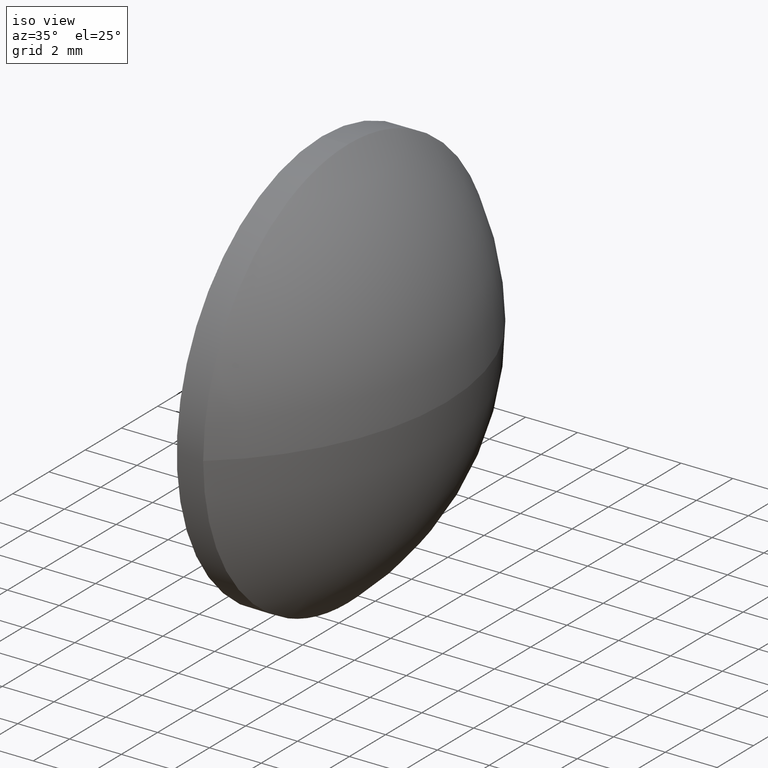
[diagram: clean part render]
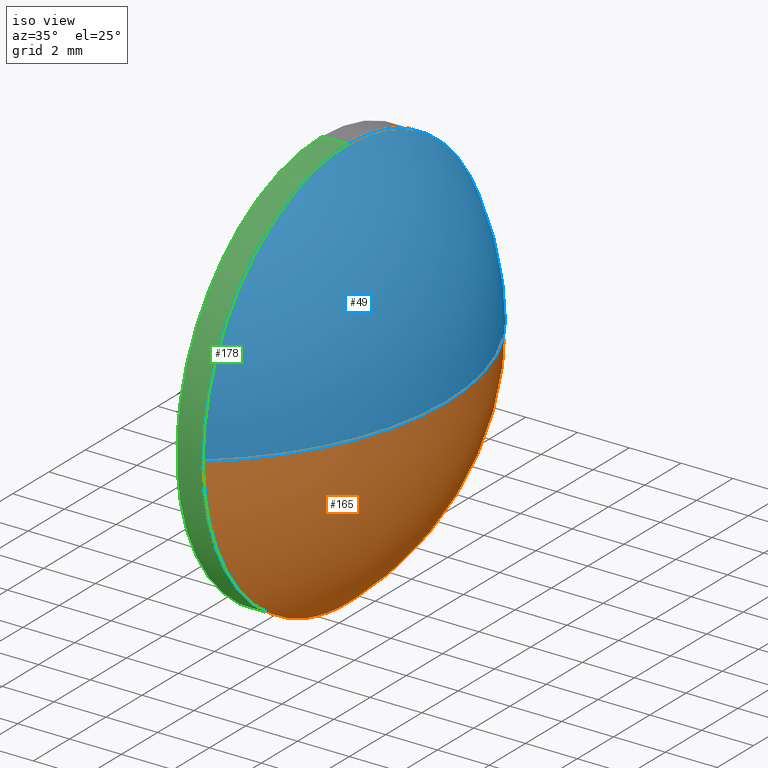
[diagram: same view with three faces highlighted in distinct colors, each labeled with its STEP entity id]
A machine part, iso view with three faces highlighted in distinct colors.
Their STEP definitions:

[orange] entity #165 — the highlighted spherical surface has radius 10.3556 mm.
#6 = CARTESIAN_POINT ( 'NONE',  ( 345.2225912842954500, 126.8000505351327700, 0.0000000000000000000 ) ) ;
#8 = ORIENTED_EDGE ( 'NONE', *, *, #113, .F. ) ;
#14 = DIRECTION ( 'NONE',  ( 0.0000000000000000000, 0.0000000000000000000, 1.000000000000000000 ) ) ;
#15 = CIRCLE ( 'NONE', #102, 7.999999999999979600 ) ;
#23 = CARTESIAN_POINT ( 'NONE',  ( 351.7981997499039200, 134.8000505351327500, 0.0000000000000000000 ) ) ;
#26 = VERTEX_POINT ( 'NONE', #60 ) ;
#28 = EDGE_CURVE ( 'NONE', #141, #26, #54, .T. ) ;
#38 = ORIENTED_EDGE ( 'NONE', *, *, #70, .T. ) ;
#39 = EDGE_CURVE ( 'NONE', #26, #42, #15, .T. ) ;
#42 = VERTEX_POINT ( 'NONE', #146 ) ;
#54 = CIRCLE ( 'NONE', #79, 7.999999999999979600 ) ;
#57 = CIRCLE ( 'NONE', #135, 10.35560846560845700 ) ;
#60 = CARTESIAN_POINT ( 'NONE',  ( 351.7981997499039200, 126.8000505351327700, -7.999999999999979600 ) ) ;
#67 = EDGE_LOOP ( 'NONE', ( #8, #38, #98, #144 ) ) ;
#70 = EDGE_CURVE ( 'NONE', #158, #42, #114, .T. ) ;
#75 = DIRECTION ( 'NONE',  ( -0.0000000000000000000, 0.0000000000000000000, 1.000000000000000000 ) ) ;
#79 = AXIS2_PLACEMENT_3D ( 'NONE', #163, #161, #14 ) ;
#83 = SPHERICAL_SURFACE ( 'NONE', #162, 10.35560846560845000 ) ;
#86 = DIRECTION ( 'NONE',  ( 0.0000000000000000000, 1.000000000000000000, 1.224646799147352500E-016 ) ) ;
#87 = DIRECTION ( 'NONE',  ( 0.0000000000000000000, 1.000000000000000000, 0.0000000000000000000 ) ) ;
#98 = ORIENTED_EDGE ( 'NONE', *, *, #39, .F. ) ;
#102 = AXIS2_PLACEMENT_3D ( 'NONE', #118, #153, #133 ) ;
#113 = EDGE_CURVE ( 'NONE', #158, #141, #57, .T. ) ;
#114 = CIRCLE ( 'NONE', #154, 10.35560846560845700 ) ;
#116 = DIRECTION ( 'NONE',  ( 1.000000000000000000, 0.0000000000000000000, 0.0000000000000000000 ) ) ;
#118 = CARTESIAN_POINT ( 'NONE',  ( 351.7981997499039200, 126.8000505351327700, 0.0000000000000000000 ) ) ;
#119 = DIRECTION ( 'NONE',  ( -0.0000000000000000000, 0.0000000000000000000, -1.000000000000000000 ) ) ;
#132 = CARTESIAN_POINT ( 'NONE',  ( 355.5781997499038900, 126.8000505351327700, 0.0000000000000000000 ) ) ;
#133 = DIRECTION ( 'NONE',  ( 0.0000000000000000000, 0.0000000000000000000, 1.000000000000000000 ) ) ;
#135 = AXIS2_PLACEMENT_3D ( 'NONE', #179, #75, #116 ) ;
#141 = VERTEX_POINT ( 'NONE', #23 ) ;
#144 = ORIENTED_EDGE ( 'NONE', *, *, #28, .F. ) ;
#146 = CARTESIAN_POINT ( 'NONE',  ( 351.7981997499039200, 118.8000505351327800, -9.797174393178807900E-016 ) ) ;
#148 = FACE_OUTER_BOUND ( 'NONE', #67, .T. ) ;
#151 = CARTESIAN_POINT ( 'NONE',  ( 345.2225912842954500, 126.8000505351327700, 0.0000000000000000000 ) ) ;
#153 = DIRECTION ( 'NONE',  ( -1.000000000000000000, -0.0000000000000000000, -0.0000000000000000000 ) ) ;
#154 = AXIS2_PLACEMENT_3D ( 'NONE', #151, #177, #86 ) ;
#158 = VERTEX_POINT ( 'NONE', #132 ) ;
#161 = DIRECTION ( 'NONE',  ( -1.000000000000000000, -0.0000000000000000000, -0.0000000000000000000 ) ) ;
#162 = AXIS2_PLACEMENT_3D ( 'NONE', #6, #119, #87 ) ;
#163 = CARTESIAN_POINT ( 'NONE',  ( 351.7981997499039200, 126.8000505351327700, 0.0000000000000000000 ) ) ;
#165 = ADVANCED_FACE ( 'NONE', ( #148 ), #83, .T. ) ;
#177 = DIRECTION ( 'NONE',  ( 0.0000000000000000000, 1.224646799147353200E-016, -1.000000000000000000 ) ) ;
#179 = CARTESIAN_POINT ( 'NONE',  ( 345.2225912842954500, 126.8000505351327700, 0.0000000000000000000 ) ) ;

[blue] entity #49 — the highlighted spherical surface has radius 10.3556 mm.
#4 = DIRECTION ( 'NONE',  ( 0.0000000000000000000, 0.0000000000000000000, 1.000000000000000000 ) ) ;
#5 = CARTESIAN_POINT ( 'NONE',  ( 351.7981997499039200, 126.8000505351327700, 0.0000000000000000000 ) ) ;
#21 = DIRECTION ( 'NONE',  ( -1.000000000000000000, -0.0000000000000000000, -0.0000000000000000000 ) ) ;
#22 = DIRECTION ( 'NONE',  ( -1.000000000000000000, -0.0000000000000000000, -0.0000000000000000000 ) ) ;
#23 = CARTESIAN_POINT ( 'NONE',  ( 351.7981997499039200, 134.8000505351327500, 0.0000000000000000000 ) ) ;
#29 = ORIENTED_EDGE ( 'NONE', *, *, #70, .F. ) ;
#36 = EDGE_CURVE ( 'NONE', #42, #122, #85, .T. ) ;
#42 = VERTEX_POINT ( 'NONE', #146 ) ;
#48 = AXIS2_PLACEMENT_3D ( 'NONE', #130, #136, #176 ) ;
#49 = ADVANCED_FACE ( 'NONE', ( #97 ), #147, .T. ) ;
#57 = CIRCLE ( 'NONE', #135, 10.35560846560845700 ) ;
#64 = DIRECTION ( 'NONE',  ( 0.0000000000000000000, 0.0000000000000000000, 1.000000000000000000 ) ) ;
#65 = CARTESIAN_POINT ( 'NONE',  ( 351.7981997499039200, 126.8000505351327700, 0.0000000000000000000 ) ) ;
#69 = EDGE_LOOP ( 'NONE', ( #29, #131, #137, #160 ) ) ;
#70 = EDGE_CURVE ( 'NONE', #158, #42, #114, .T. ) ;
#75 = DIRECTION ( 'NONE',  ( -0.0000000000000000000, 0.0000000000000000000, 1.000000000000000000 ) ) ;
#78 = CARTESIAN_POINT ( 'NONE',  ( 351.7981997499039200, 126.8000505351327700, 7.999999999999979600 ) ) ;
#84 = EDGE_CURVE ( 'NONE', #122, #141, #128, .T. ) ;
#85 = CIRCLE ( 'NONE', #95, 7.999999999999979600 ) ;
#86 = DIRECTION ( 'NONE',  ( 0.0000000000000000000, 1.000000000000000000, 1.224646799147352500E-016 ) ) ;
#95 = AXIS2_PLACEMENT_3D ( 'NONE', #5, #22, #4 ) ;
#97 = FACE_OUTER_BOUND ( 'NONE', #69, .T. ) ;
#113 = EDGE_CURVE ( 'NONE', #158, #141, #57, .T. ) ;
#114 = CIRCLE ( 'NONE', #154, 10.35560846560845700 ) ;
#116 = DIRECTION ( 'NONE',  ( 1.000000000000000000, 0.0000000000000000000, 0.0000000000000000000 ) ) ;
#122 = VERTEX_POINT ( 'NONE', #78 ) ;
#126 = AXIS2_PLACEMENT_3D ( 'NONE', #65, #21, #64 ) ;
#128 = CIRCLE ( 'NONE', #126, 7.999999999999979600 ) ;
#130 = CARTESIAN_POINT ( 'NONE',  ( 345.2225912842954500, 126.8000505351327700, 0.0000000000000000000 ) ) ;
#131 = ORIENTED_EDGE ( 'NONE', *, *, #113, .T. ) ;
#132 = CARTESIAN_POINT ( 'NONE',  ( 355.5781997499038900, 126.8000505351327700, 0.0000000000000000000 ) ) ;
#135 = AXIS2_PLACEMENT_3D ( 'NONE', #179, #75, #116 ) ;
#136 = DIRECTION ( 'NONE',  ( -0.0000000000000000000, 0.0000000000000000000, -1.000000000000000000 ) ) ;
#137 = ORIENTED_EDGE ( 'NONE', *, *, #84, .F. ) ;
#141 = VERTEX_POINT ( 'NONE', #23 ) ;
#146 = CARTESIAN_POINT ( 'NONE',  ( 351.7981997499039200, 118.8000505351327800, -9.797174393178807900E-016 ) ) ;
#147 = SPHERICAL_SURFACE ( 'NONE', #48, 10.35560846560845000 ) ;
#151 = CARTESIAN_POINT ( 'NONE',  ( 345.2225912842954500, 126.8000505351327700, 0.0000000000000000000 ) ) ;
#154 = AXIS2_PLACEMENT_3D ( 'NONE', #151, #177, #86 ) ;
#158 = VERTEX_POINT ( 'NONE', #132 ) ;
#160 = ORIENTED_EDGE ( 'NONE', *, *, #36, .F. ) ;
#176 = DIRECTION ( 'NONE',  ( 0.0000000000000000000, 1.000000000000000000, 0.0000000000000000000 ) ) ;
#177 = DIRECTION ( 'NONE',  ( 0.0000000000000000000, 1.224646799147353200E-016, -1.000000000000000000 ) ) ;
#179 = CARTESIAN_POINT ( 'NONE',  ( 345.2225912842954500, 126.8000505351327700, 0.0000000000000000000 ) ) ;

[green] entity #178 — the highlighted cylindrical surface (partial cylindrical patch) has radius 8 mm, axis along (-1, -0, -0).
#1 = DIRECTION ( 'NONE',  ( -1.000000000000000000, -0.0000000000000000000, -0.0000000000000000000 ) ) ;
#2 = EDGE_CURVE ( 'NONE', #122, #46, #61, .T. ) ;
#4 = DIRECTION ( 'NONE',  ( 0.0000000000000000000, 0.0000000000000000000, 1.000000000000000000 ) ) ;
#5 = CARTESIAN_POINT ( 'NONE',  ( 351.7981997499039200, 126.8000505351327700, 0.0000000000000000000 ) ) ;
#11 = ORIENTED_EDGE ( 'NONE', *, *, #30, .F. ) ;
#12 = FACE_OUTER_BOUND ( 'NONE', #34, .T. ) ;
#15 = CIRCLE ( 'NONE', #102, 7.999999999999979600 ) ;
#22 = DIRECTION ( 'NONE',  ( -1.000000000000000000, -0.0000000000000000000, -0.0000000000000000000 ) ) ;
#26 = VERTEX_POINT ( 'NONE', #60 ) ;
#27 = VECTOR ( 'NONE', #80, 1000.000000000000000 ) ;
#30 = EDGE_CURVE ( 'NONE', #107, #46, #170, .T. ) ;
#33 = CARTESIAN_POINT ( 'NONE',  ( 332.1518566480925200, 126.8000505351327700, -7.999999999999979600 ) ) ;
#34 = EDGE_LOOP ( 'NONE', ( #173, #175, #174, #109, #11 ) ) ;
#36 = EDGE_CURVE ( 'NONE', #42, #122, #85, .T. ) ;
#39 = EDGE_CURVE ( 'NONE', #26, #42, #15, .T. ) ;
#42 = VERTEX_POINT ( 'NONE', #146 ) ;
#43 = AXIS2_PLACEMENT_3D ( 'NONE', #134, #50, #52 ) ;
#46 = VERTEX_POINT ( 'NONE', #99 ) ;
#50 = DIRECTION ( 'NONE',  ( -1.000000000000000000, -0.0000000000000000000, -0.0000000000000000000 ) ) ;
#52 = DIRECTION ( 'NONE',  ( 0.0000000000000000000, 0.0000000000000000000, 1.000000000000000000 ) ) ;
#55 = CARTESIAN_POINT ( 'NONE',  ( 332.1518566480925200, 126.8000505351327700, 0.0000000000000000000 ) ) ;
#56 = DIRECTION ( 'NONE',  ( -1.000000000000000000, -0.0000000000000000000, -0.0000000000000000000 ) ) ;
#60 = CARTESIAN_POINT ( 'NONE',  ( 351.7981997499039200, 126.8000505351327700, -7.999999999999979600 ) ) ;
#61 = LINE ( 'NONE', #129, #89 ) ;
#71 = AXIS2_PLACEMENT_3D ( 'NONE', #55, #56, #169 ) ;
#78 = CARTESIAN_POINT ( 'NONE',  ( 351.7981997499039200, 126.8000505351327700, 7.999999999999979600 ) ) ;
#80 = DIRECTION ( 'NONE',  ( -1.000000000000000000, -0.0000000000000000000, -0.0000000000000000000 ) ) ;
#85 = CIRCLE ( 'NONE', #95, 7.999999999999979600 ) ;
#89 = VECTOR ( 'NONE', #1, 1000.000000000000000 ) ;
#91 = LINE ( 'NONE', #33, #27 ) ;
#95 = AXIS2_PLACEMENT_3D ( 'NONE', #5, #22, #4 ) ;
#99 = CARTESIAN_POINT ( 'NONE',  ( 350.7781997499039300, 126.8000505351327700, 7.999999999999979600 ) ) ;
#102 = AXIS2_PLACEMENT_3D ( 'NONE', #118, #153, #133 ) ;
#107 = VERTEX_POINT ( 'NONE', #164 ) ;
#109 = ORIENTED_EDGE ( 'NONE', *, *, #2, .T. ) ;
#118 = CARTESIAN_POINT ( 'NONE',  ( 351.7981997499039200, 126.8000505351327700, 0.0000000000000000000 ) ) ;
#122 = VERTEX_POINT ( 'NONE', #78 ) ;
#129 = CARTESIAN_POINT ( 'NONE',  ( 332.1518566480925200, 126.8000505351327700, 7.999999999999979600 ) ) ;
#133 = DIRECTION ( 'NONE',  ( 0.0000000000000000000, 0.0000000000000000000, 1.000000000000000000 ) ) ;
#134 = CARTESIAN_POINT ( 'NONE',  ( 350.7781997499039300, 126.8000505351327700, 0.0000000000000000000 ) ) ;
#140 = CYLINDRICAL_SURFACE ( 'NONE', #71, 7.999999999999979600 ) ;
#142 = EDGE_CURVE ( 'NONE', #26, #107, #91, .T. ) ;
#146 = CARTESIAN_POINT ( 'NONE',  ( 351.7981997499039200, 118.8000505351327800, -9.797174393178807900E-016 ) ) ;
#153 = DIRECTION ( 'NONE',  ( -1.000000000000000000, -0.0000000000000000000, -0.0000000000000000000 ) ) ;
#164 = CARTESIAN_POINT ( 'NONE',  ( 350.7781997499039300, 126.8000505351327700, -7.999999999999979600 ) ) ;
#169 = DIRECTION ( 'NONE',  ( 0.0000000000000000000, 0.0000000000000000000, 1.000000000000000000 ) ) ;
#170 = CIRCLE ( 'NONE', #43, 7.999999999999979600 ) ;
#173 = ORIENTED_EDGE ( 'NONE', *, *, #142, .F. ) ;
#174 = ORIENTED_EDGE ( 'NONE', *, *, #36, .T. ) ;
#175 = ORIENTED_EDGE ( 'NONE', *, *, #39, .T. ) ;
#178 = ADVANCED_FACE ( 'NONE', ( #12 ), #140, .T. ) ;